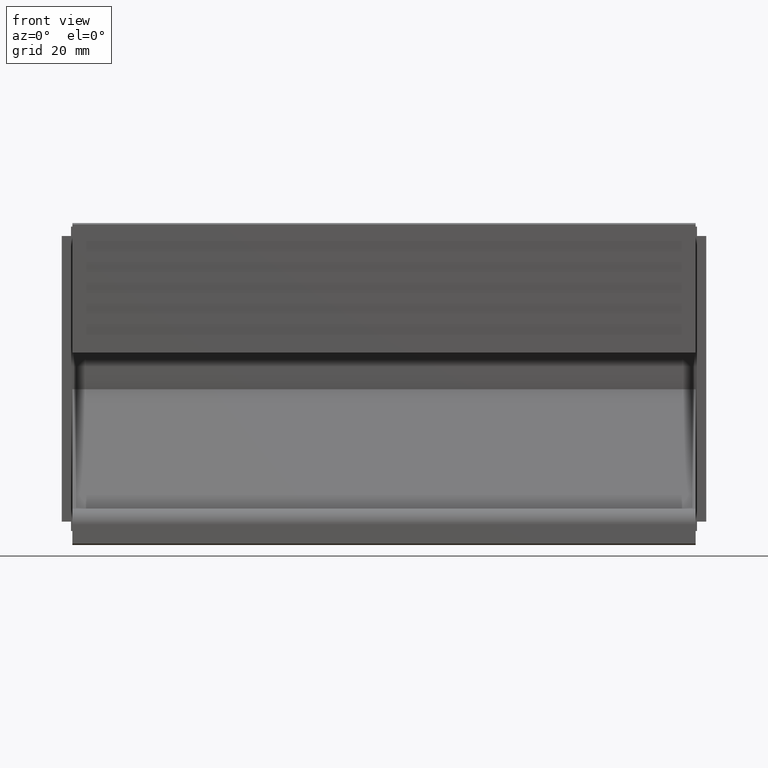
[diagram: clean part render]
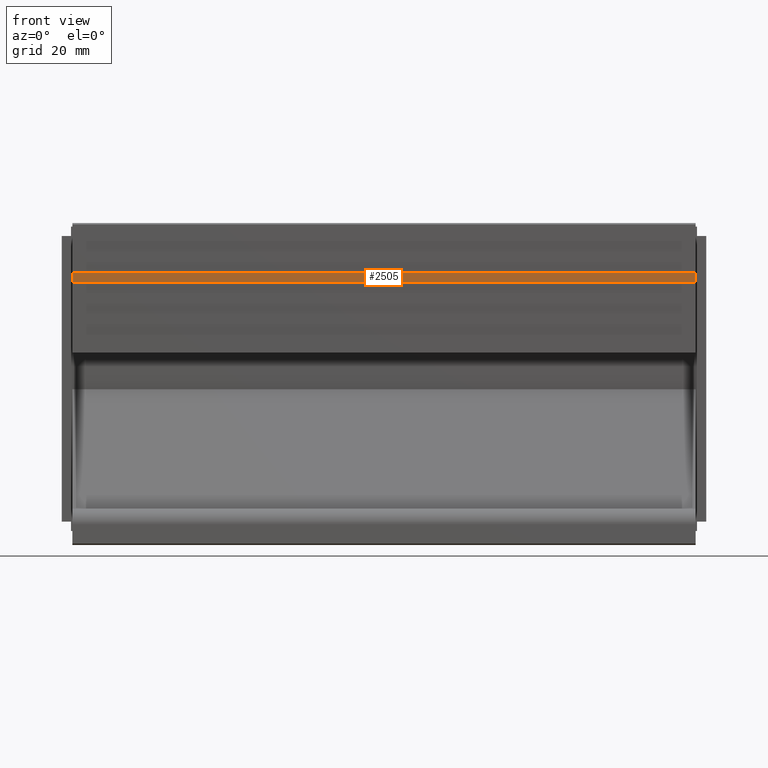
[diagram: same view with one face highlighted and labeled with its STEP entity id]
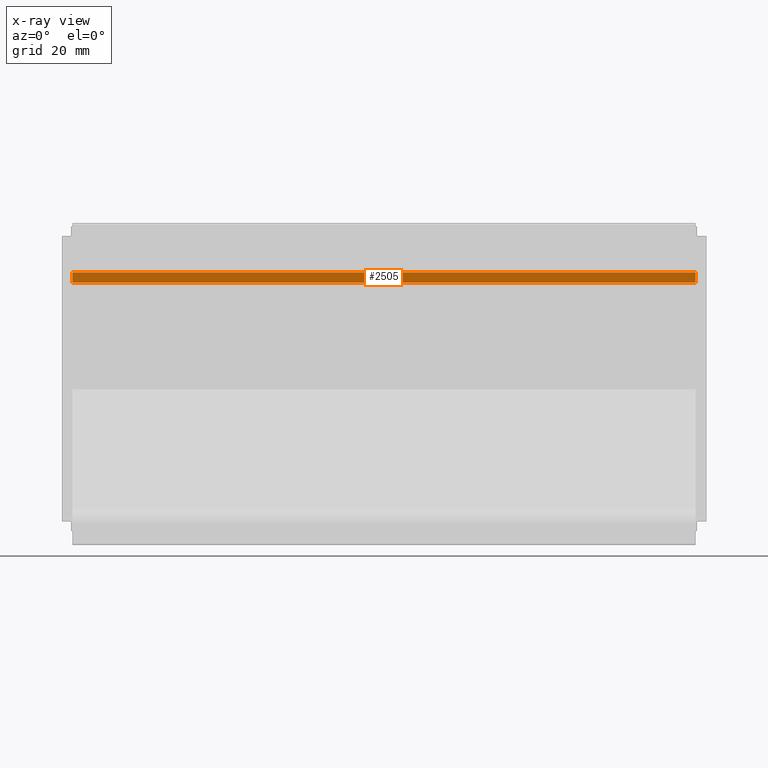
[diagram: x-ray of the same camera — body ghosted, the highlighted face saturated]
A machine part, front view. The second image highlights one B-rep face of the part: STEP entity #2505.
The next image is the same camera in x-ray: the body ghosted, the highlighted face saturated — about 0% of this face is hidden behind the body in this view.
In plain terms, the highlighted face is a freeform B-spline surface patch.
Its self-contained STEP definition (entity closure, byte-faithful):
#1052=CARTESIAN_POINT('',(60.0,-2.0,52.500000000000000));
#1053=VERTEX_POINT('',#1052);
#1059=CARTESIAN_POINT('',(60.0,-2.0,50.500000000000000));
#1060=VERTEX_POINT('',#1059);
#1061=CARTESIAN_POINT('',(60.0,-2.0,52.500000000000000));
#1062=CARTESIAN_POINT('',(60.0,-2.0,50.500000000000000));
#1063=QUASI_UNIFORM_CURVE('',1,(#1061,#1062),.UNSPECIFIED.,.F.,.U.);
#1064=EDGE_CURVE('',#1053,#1060,#1063,.T.);
#1627=CARTESIAN_POINT('',(-60.0,-2.0,50.500000000000000));
#1628=VERTEX_POINT('',#1627);
#1634=CARTESIAN_POINT('',(-60.0,-2.0,52.500000000000000));
#1635=VERTEX_POINT('',#1634);
#1636=CARTESIAN_POINT('',(-60.0,-2.0,52.500000000000000));
#1637=CARTESIAN_POINT('',(-60.0,-2.0,50.500000000000000));
#1638=QUASI_UNIFORM_CURVE('',1,(#1636,#1637),.UNSPECIFIED.,.F.,.U.);
#1639=EDGE_CURVE('',#1635,#1628,#1638,.T.);
#2480=CARTESIAN_POINT('',(-60.0,-2.0,50.500000000000000));
#2481=CARTESIAN_POINT('',(60.0,-2.0,50.500000000000000));
#2482=QUASI_UNIFORM_CURVE('',1,(#2480,#2481),.UNSPECIFIED.,.F.,.U.);
#2483=EDGE_CURVE('',#1628,#1060,#2482,.T.);
#2490=CARTESIAN_POINT('',(-65.993999767416710,-2.0,52.599899996123611));
#2491=CARTESIAN_POINT('',(-65.993999767416710,-2.0,50.400099950232189));
#2492=CARTESIAN_POINT('',(65.994002986067542,-2.0,52.599899996123611));
#2493=CARTESIAN_POINT('',(65.994002986067542,-2.0,50.400099950232203));
#2494=B_SPLINE_SURFACE_WITH_KNOTS('',1,1,((#2490,#2492),(#2491,#2493)),.UNSPECIFIED.,.F.,.F.,.U.,(2,2),(2,2),(0.0,2.199800045891422),(0.0,131.988002753484210),.UNSPECIFIED.);
#2495=ORIENTED_EDGE('',*,*,#1064,.F.);
#2496=CARTESIAN_POINT('',(-60.0,-2.0,52.500000000000000));
#2497=CARTESIAN_POINT('',(60.0,-2.0,52.500000000000000));
#2498=QUASI_UNIFORM_CURVE('',1,(#2496,#2497),.UNSPECIFIED.,.F.,.U.);
#2499=EDGE_CURVE('',#1635,#1053,#2498,.T.);
#2500=ORIENTED_EDGE('',*,*,#2499,.F.);
#2501=ORIENTED_EDGE('',*,*,#1639,.T.);
#2502=ORIENTED_EDGE('',*,*,#2483,.T.);
#2503=EDGE_LOOP('',(#2495,#2500,#2501,#2502));
#2504=FACE_OUTER_BOUND('',#2503,.T.);
#2505=ADVANCED_FACE('',(#2504),#2494,.T.);